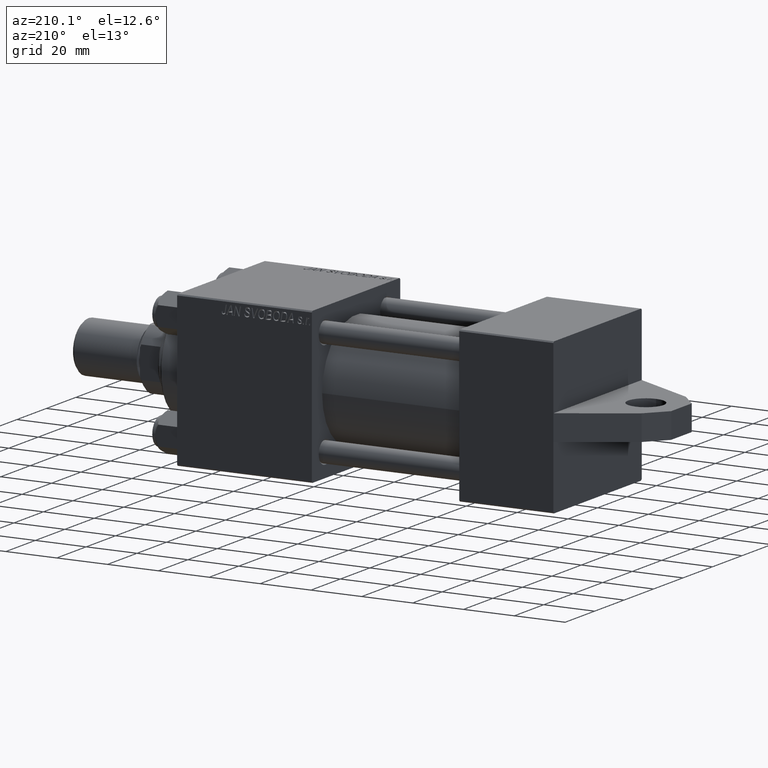
[diagram: clean part render]
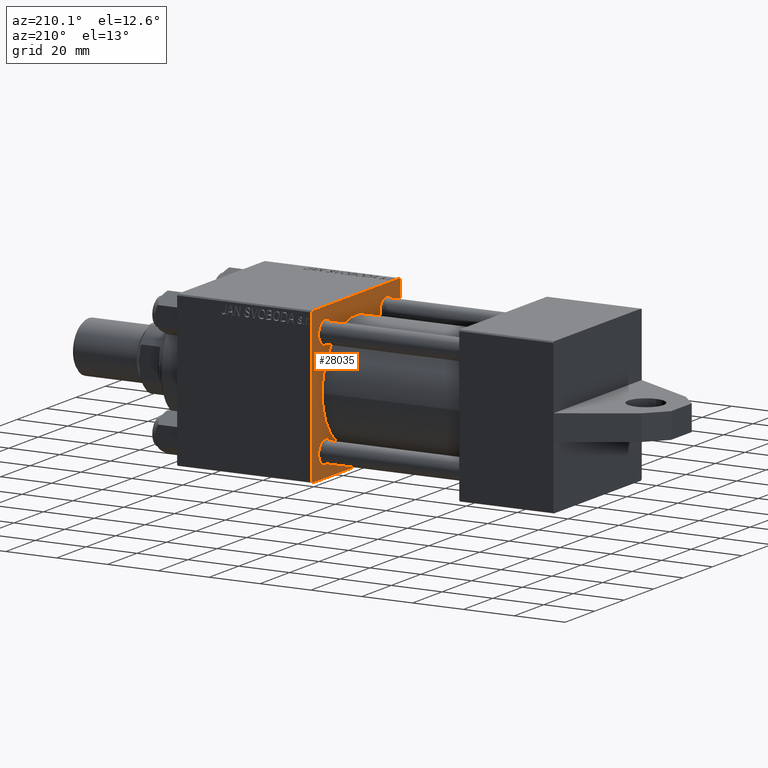
[diagram: same view with one face highlighted and labeled with its STEP entity id]
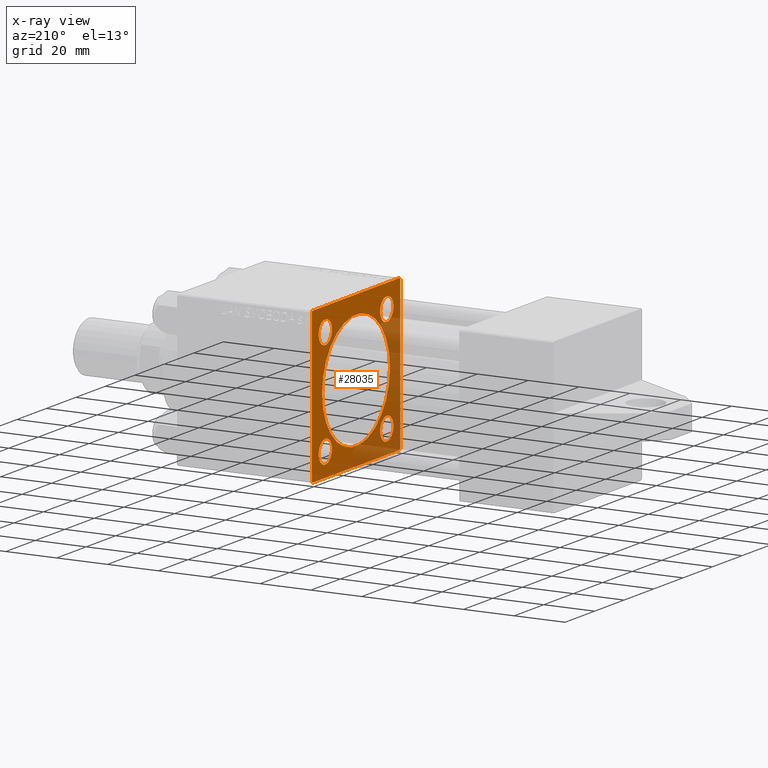
[diagram: x-ray of the same camera — body ghosted, the highlighted face saturated]
A machine part, auxiliary view. The second image highlights one B-rep face of the part: STEP entity #28035.
The next image is the same camera in x-ray: the body ghosted, the highlighted face saturated — about 35% of this face is hidden behind the body in this view.
In plain terms, the highlighted planar face has unit normal (-1, -0, 0).
Its self-contained STEP definition (entity closure, byte-faithful):
#1181 = VECTOR ( 'NONE', #41340, 1000.000000000000114 ) ;
#1668 = EDGE_CURVE ( 'NONE', #6288, #7102, #41125, .T. ) ;
#2061 = CARTESIAN_POINT ( 'NONE',  ( 95.00000000000000000, -2.602085213965210642E-15, 0.000000000000000000 ) ) ;
#2708 = DIRECTION ( 'NONE',  ( 0.000000000000000000, -1.000000000000000000, -1.156482317317871478E-16 ) ) ;
#2984 = AXIS2_PLACEMENT_3D ( 'NONE', #22006, #7453, #37054 ) ;
#3054 = VERTEX_POINT ( 'NONE', #14823 ) ;
#3733 = VECTOR ( 'NONE', #10145, 1000.000000000000114 ) ;
#3761 = VERTEX_POINT ( 'NONE', #38204 ) ;
#3844 = CARTESIAN_POINT ( 'NONE',  ( 95.00000000000000000, 20.84999999999999787, 16.34999999999999787 ) ) ;
#4230 = AXIS2_PLACEMENT_3D ( 'NONE', #12137, #40362, #16108 ) ;
#4669 = CARTESIAN_POINT ( 'NONE',  ( 95.00000000000000000, -20.85000000000000142, -20.85000000000000142 ) ) ;
#4870 = VERTEX_POINT ( 'NONE', #19554 ) ;
#5333 = DIRECTION ( 'NONE',  ( 1.000000000000000000, -0.000000000000000000, 0.000000000000000000 ) ) ;
#6125 = ORIENTED_EDGE ( 'NONE', *, *, #15425, .T. ) ;
#6193 = CARTESIAN_POINT ( 'NONE',  ( 95.00000000000000000, 20.84999999999999787, -20.85000000000000142 ) ) ;
#6213 = CARTESIAN_POINT ( 'NONE',  ( 95.00000000000000000, 29.74999999999999645, 29.74999999999999645 ) ) ;
#6288 = VERTEX_POINT ( 'NONE', #33983 ) ;
#6796 = DIRECTION ( 'NONE',  ( 0.000000000000000000, 0.000000000000000000, 1.000000000000000000 ) ) ;
#7084 = EDGE_CURVE ( 'NONE', #15320, #3761, #18960, .T. ) ;
#7102 = VERTEX_POINT ( 'NONE', #44412 ) ;
#7315 = ORIENTED_EDGE ( 'NONE', *, *, #34019, .F. ) ;
#7453 = DIRECTION ( 'NONE',  ( -1.000000000000000000, 0.000000000000000000, -0.000000000000000000 ) ) ;
#7680 = FACE_BOUND ( 'NONE', #42726, .T. ) ;
#8087 = CIRCLE ( 'NONE', #8822, 23.00000000000000000 ) ;
#8168 = ORIENTED_EDGE ( 'NONE', *, *, #46220, .T. ) ;
#8444 = DIRECTION ( 'NONE',  ( 0.000000000000000000, 0.000000000000000000, 1.000000000000000000 ) ) ;
#8560 = AXIS2_PLACEMENT_3D ( 'NONE', #37560, #5333, #16140 ) ;
#8822 = AXIS2_PLACEMENT_3D ( 'NONE', #2061, #9833, #19935 ) ;
#8897 = ORIENTED_EDGE ( 'NONE', *, *, #38929, .T. ) ;
#9593 = CARTESIAN_POINT ( 'NONE',  ( 95.00000000000000000, -30.00000000000000000, -29.49999999999998579 ) ) ;
#9659 = CIRCLE ( 'NONE', #42711, 4.500000000000003553 ) ;
#9833 = DIRECTION ( 'NONE',  ( 1.000000000000000000, 0.000000000000000000, 0.000000000000000000 ) ) ;
#9843 = DIRECTION ( 'NONE',  ( 1.000000000000000000, -0.000000000000000000, 0.000000000000000000 ) ) ;
#9914 = EDGE_CURVE ( 'NONE', #28671, #4870, #13659, .T. ) ;
#10126 = DIRECTION ( 'NONE',  ( 0.000000000000000000, 0.000000000000000000, -1.000000000000000000 ) ) ;
#10145 = DIRECTION ( 'NONE',  ( 0.000000000000000000, -0.7071067811865474617, 0.7071067811865474617 ) ) ;
#10306 = EDGE_CURVE ( 'NONE', #40777, #41598, #22814, .T. ) ;
#10940 = DIRECTION ( 'NONE',  ( 0.000000000000000000, 0.000000000000000000, 1.000000000000000000 ) ) ;
#10987 = DIRECTION ( 'NONE',  ( 0.000000000000000000, 0.000000000000000000, -1.000000000000000000 ) ) ;
#11040 = VERTEX_POINT ( 'NONE', #14216 ) ;
#11115 = AXIS2_PLACEMENT_3D ( 'NONE', #35119, #42409, #36457 ) ;
#11880 = CIRCLE ( 'NONE', #11115, 4.500000000000003553 ) ;
#12137 = CARTESIAN_POINT ( 'NONE',  ( 95.00000000000000000, -20.84999999999999432, 20.85000000000000142 ) ) ;
#12753 = VERTEX_POINT ( 'NONE', #9593 ) ;
#13342 = CARTESIAN_POINT ( 'NONE',  ( 95.00000000000000000, -30.00000000000000000, 29.99999999999999289 ) ) ;
#13659 = LINE ( 'NONE', #28011, #21320 ) ;
#13898 = DIRECTION ( 'NONE',  ( 1.000000000000000000, 0.000000000000000000, 0.000000000000000000 ) ) ;
#14216 = CARTESIAN_POINT ( 'NONE',  ( 95.00000000000000000, -20.84999999999999432, 25.35000000000000497 ) ) ;
#14690 = CARTESIAN_POINT ( 'NONE',  ( 95.00000000000000000, 20.84999999999999787, 20.85000000000000142 ) ) ;
#14823 = CARTESIAN_POINT ( 'NONE',  ( 95.00000000000000000, -20.84999999999999432, 16.34999999999999787 ) ) ;
#14971 = CIRCLE ( 'NONE', #26987, 23.00000000000000000 ) ;
#15225 = VERTEX_POINT ( 'NONE', #45915 ) ;
#15320 = VERTEX_POINT ( 'NONE', #16982 ) ;
#15425 = EDGE_CURVE ( 'NONE', #15225, #7102, #15713, .T. ) ;
#15705 = CARTESIAN_POINT ( 'NONE',  ( 95.00000000000000000, 30.00000000000000000, 29.50000000000000000 ) ) ;
#15713 = LINE ( 'NONE', #41808, #1181 ) ;
#15927 = EDGE_CURVE ( 'NONE', #3761, #15320, #31999, .T. ) ;
#16108 = DIRECTION ( 'NONE',  ( 0.000000000000000000, 0.000000000000000000, 1.000000000000000000 ) ) ;
#16140 = DIRECTION ( 'NONE',  ( 0.000000000000000000, 0.000000000000000000, 1.000000000000000000 ) ) ;
#16193 = ORIENTED_EDGE ( 'NONE', *, *, #26697, .T. ) ;
#16707 = AXIS2_PLACEMENT_3D ( 'NONE', #4669, #32906, #8444 ) ;
#16982 = CARTESIAN_POINT ( 'NONE',  ( 95.00000000000000000, -20.85000000000000142, -16.34999999999999787 ) ) ;
#17021 = DIRECTION ( 'NONE',  ( 0.000000000000000000, 0.7071067811865474617, -0.7071067811865474617 ) ) ;
#17475 = LINE ( 'NONE', #32747, #40477 ) ;
#17637 = CARTESIAN_POINT ( 'NONE',  ( 95.00000000000000000, -29.50000000000000000, -30.00000000000000000 ) ) ;
#17757 = CARTESIAN_POINT ( 'NONE',  ( 95.00000000000000000, 30.00000000000000000, -29.99999999999999289 ) ) ;
#18525 = CIRCLE ( 'NONE', #44809, 4.500000000000003553 ) ;
#18960 = CIRCLE ( 'NONE', #16707, 4.500000000000003553 ) ;
#19378 = VECTOR ( 'NONE', #2708, 1000.000000000000000 ) ;
#19431 = CARTESIAN_POINT ( 'NONE',  ( 95.00000000000000000, 20.84999999999999787, -25.35000000000000497 ) ) ;
#19554 = CARTESIAN_POINT ( 'NONE',  ( 95.00000000000000000, 30.00000000000000000, -29.49999999999997868 ) ) ;
#19935 = DIRECTION ( 'NONE',  ( 0.000000000000000000, 0.000000000000000000, -1.000000000000000000 ) ) ;
#19940 = DIRECTION ( 'NONE',  ( 0.000000000000000000, -1.000000000000000000, -1.156482317317871478E-16 ) ) ;
#20203 = ORIENTED_EDGE ( 'NONE', *, *, #40073, .T. ) ;
#20519 = DIRECTION ( 'NONE',  ( 1.000000000000000000, -0.000000000000000000, 0.000000000000000000 ) ) ;
#20625 = EDGE_CURVE ( 'NONE', #3054, #11040, #41796, .T. ) ;
#20859 = CARTESIAN_POINT ( 'NONE',  ( 95.00000000000000000, 20.84999999999999787, -16.34999999999999787 ) ) ;
#20885 = ORIENTED_EDGE ( 'NONE', *, *, #10306, .T. ) ;
#21320 = VECTOR ( 'NONE', #10126, 1000.000000000000000 ) ;
#21556 = EDGE_CURVE ( 'NONE', #41598, #40777, #36560, .T. ) ;
#21724 = EDGE_CURVE ( 'NONE', #29578, #32994, #18525, .T. ) ;
#21961 = CARTESIAN_POINT ( 'NONE',  ( 95.00000000000000000, -20.85000000000000142, -20.85000000000000142 ) ) ;
#22006 = CARTESIAN_POINT ( 'NONE',  ( 95.00000000000000000, 0.000000000000000000, 0.000000000000000000 ) ) ;
#22201 = DIRECTION ( 'NONE',  ( 1.000000000000000000, -0.000000000000000000, 0.000000000000000000 ) ) ;
#22696 = PLANE ( 'NONE',  #2984 ) ;
#22814 = CIRCLE ( 'NONE', #8560, 4.500000000000003553 ) ;
#22848 = CARTESIAN_POINT ( 'NONE',  ( 95.00000000000000000, 2.146024240737012665E-16, -23.00000000000000000 ) ) ;
#23377 = EDGE_LOOP ( 'NONE', ( #24789, #24798 ) ) ;
#24351 = LINE ( 'NONE', #17757, #19378 ) ;
#24547 = EDGE_CURVE ( 'NONE', #32826, #38518, #24351, .T. ) ;
#24789 = ORIENTED_EDGE ( 'NONE', *, *, #7084, .T. ) ;
#24798 = ORIENTED_EDGE ( 'NONE', *, *, #15927, .T. ) ;
#25172 = EDGE_CURVE ( 'NONE', #11040, #3054, #9659, .T. ) ;
#25776 = FACE_BOUND ( 'NONE', #28087, .T. ) ;
#26171 = EDGE_CURVE ( 'NONE', #40922, #30385, #14971, .T. ) ;
#26697 = EDGE_CURVE ( 'NONE', #6288, #28671, #38441, .T. ) ;
#26815 = AXIS2_PLACEMENT_3D ( 'NONE', #14690, #22201, #10940 ) ;
#26987 = AXIS2_PLACEMENT_3D ( 'NONE', #35776, #13898, #46358 ) ;
#27171 = EDGE_CURVE ( 'NONE', #38518, #12753, #42367, .T. ) ;
#27613 = EDGE_LOOP ( 'NONE', ( #28727, #20203 ) ) ;
#27729 = VECTOR ( 'NONE', #17021, 1000.000000000000114 ) ;
#27834 = DIRECTION ( 'NONE',  ( 0.000000000000000000, 0.000000000000000000, 1.000000000000000000 ) ) ;
#27926 = ORIENTED_EDGE ( 'NONE', *, *, #1668, .F. ) ;
#28011 = CARTESIAN_POINT ( 'NONE',  ( 95.00000000000000000, 30.00000000000000000, 30.00000000000000000 ) ) ;
#28035 = ADVANCED_FACE ( 'NONE', ( #25776, #7680, #29080, #29535, #39898, #29762 ), #22696, .T. ) ;
#28087 = EDGE_LOOP ( 'NONE', ( #28503, #31288 ) ) ;
#28492 = ORIENTED_EDGE ( 'NONE', *, *, #27171, .T. ) ;
#28503 = ORIENTED_EDGE ( 'NONE', *, *, #25172, .T. ) ;
#28671 = VERTEX_POINT ( 'NONE', #15705 ) ;
#28727 = ORIENTED_EDGE ( 'NONE', *, *, #21724, .T. ) ;
#29038 = DIRECTION ( 'NONE',  ( 0.000000000000000000, 0.000000000000000000, 1.000000000000000000 ) ) ;
#29080 = FACE_BOUND ( 'NONE', #27613, .T. ) ;
#29535 = FACE_BOUND ( 'NONE', #23377, .T. ) ;
#29578 = VERTEX_POINT ( 'NONE', #20859 ) ;
#29748 = AXIS2_PLACEMENT_3D ( 'NONE', #21961, #35866, #29038 ) ;
#29762 = FACE_OUTER_BOUND ( 'NONE', #39633, .T. ) ;
#30385 = VERTEX_POINT ( 'NONE', #35228 ) ;
#30540 = CARTESIAN_POINT ( 'NONE',  ( 95.00000000000000000, 30.00000000000000000, 30.00000000000000000 ) ) ;
#31288 = ORIENTED_EDGE ( 'NONE', *, *, #20625, .T. ) ;
#31999 = CIRCLE ( 'NONE', #29748, 4.500000000000003553 ) ;
#32747 = CARTESIAN_POINT ( 'NONE',  ( 95.00000000000000000, 29.74999999999999645, -29.74999999999999645 ) ) ;
#32826 = VERTEX_POINT ( 'NONE', #43693 ) ;
#32906 = DIRECTION ( 'NONE',  ( 1.000000000000000000, -0.000000000000000000, 0.000000000000000000 ) ) ;
#32994 = VERTEX_POINT ( 'NONE', #19431 ) ;
#33700 = EDGE_LOOP ( 'NONE', ( #8897, #44918 ) ) ;
#33983 = CARTESIAN_POINT ( 'NONE',  ( 95.00000000000000000, 29.50000000000000000, 30.00000000000000000 ) ) ;
#34019 = EDGE_CURVE ( 'NONE', #15225, #12753, #45559, .T. ) ;
#34136 = CARTESIAN_POINT ( 'NONE',  ( 95.00000000000000000, -29.74999999999999645, -29.74999999999999645 ) ) ;
#35119 = CARTESIAN_POINT ( 'NONE',  ( 95.00000000000000000, 20.84999999999999787, -20.85000000000000142 ) ) ;
#35228 = CARTESIAN_POINT ( 'NONE',  ( 95.00000000000000000, -2.602085213965210642E-15, 23.00000000000000000 ) ) ;
#35776 = CARTESIAN_POINT ( 'NONE',  ( 95.00000000000000000, -2.602085213965210642E-15, 0.000000000000000000 ) ) ;
#35866 = DIRECTION ( 'NONE',  ( 1.000000000000000000, -0.000000000000000000, 0.000000000000000000 ) ) ;
#36457 = DIRECTION ( 'NONE',  ( 0.000000000000000000, 0.000000000000000000, 1.000000000000000000 ) ) ;
#36560 = CIRCLE ( 'NONE', #26815, 4.500000000000003553 ) ;
#37054 = DIRECTION ( 'NONE',  ( -0.000000000000000000, 0.000000000000000000, 1.000000000000000000 ) ) ;
#37551 = ORIENTED_EDGE ( 'NONE', *, *, #9914, .T. ) ;
#37560 = CARTESIAN_POINT ( 'NONE',  ( 95.00000000000000000, 20.84999999999999787, 20.85000000000000142 ) ) ;
#37931 = VECTOR ( 'NONE', #10987, 1000.000000000000000 ) ;
#38204 = CARTESIAN_POINT ( 'NONE',  ( 95.00000000000000000, -20.85000000000000142, -25.35000000000000497 ) ) ;
#38441 = LINE ( 'NONE', #6213, #27729 ) ;
#38518 = VERTEX_POINT ( 'NONE', #17637 ) ;
#38772 = ORIENTED_EDGE ( 'NONE', *, *, #21556, .T. ) ;
#38929 = EDGE_CURVE ( 'NONE', #30385, #40922, #8087, .T. ) ;
#39591 = DIRECTION ( 'NONE',  ( -0.000000000000000000, -0.7071067811865474617, -0.7071067811865474617 ) ) ;
#39633 = EDGE_LOOP ( 'NONE', ( #41600, #28492, #7315, #6125, #27926, #16193, #37551, #8168 ) ) ;
#39898 = FACE_BOUND ( 'NONE', #33700, .T. ) ;
#40073 = EDGE_CURVE ( 'NONE', #32994, #29578, #11880, .T. ) ;
#40362 = DIRECTION ( 'NONE',  ( 1.000000000000000000, -0.000000000000000000, 0.000000000000000000 ) ) ;
#40477 = VECTOR ( 'NONE', #39591, 1000.000000000000114 ) ;
#40777 = VERTEX_POINT ( 'NONE', #41710 ) ;
#40922 = VERTEX_POINT ( 'NONE', #22848 ) ;
#41125 = LINE ( 'NONE', #30540, #44793 ) ;
#41340 = DIRECTION ( 'NONE',  ( -0.000000000000000000, 0.7071067811865474617, 0.7071067811865474617 ) ) ;
#41598 = VERTEX_POINT ( 'NONE', #3844 ) ;
#41600 = ORIENTED_EDGE ( 'NONE', *, *, #24547, .T. ) ;
#41710 = CARTESIAN_POINT ( 'NONE',  ( 95.00000000000000000, 20.84999999999999787, 25.35000000000000497 ) ) ;
#41796 = CIRCLE ( 'NONE', #4230, 4.500000000000003553 ) ;
#41808 = CARTESIAN_POINT ( 'NONE',  ( 95.00000000000000000, -29.74999999999999645, 29.74999999999999645 ) ) ;
#42071 = CARTESIAN_POINT ( 'NONE',  ( 95.00000000000000000, -20.84999999999999432, 20.85000000000000142 ) ) ;
#42367 = LINE ( 'NONE', #34136, #3733 ) ;
#42409 = DIRECTION ( 'NONE',  ( 1.000000000000000000, -0.000000000000000000, 0.000000000000000000 ) ) ;
#42711 = AXIS2_PLACEMENT_3D ( 'NONE', #42071, #9843, #6796 ) ;
#42726 = EDGE_LOOP ( 'NONE', ( #20885, #38772 ) ) ;
#43693 = CARTESIAN_POINT ( 'NONE',  ( 95.00000000000000000, 29.50000000000000000, -29.99999999999999289 ) ) ;
#44412 = CARTESIAN_POINT ( 'NONE',  ( 95.00000000000000000, -29.50000000000000000, 29.99999999999999289 ) ) ;
#44793 = VECTOR ( 'NONE', #19940, 1000.000000000000000 ) ;
#44809 = AXIS2_PLACEMENT_3D ( 'NONE', #6193, #20519, #27834 ) ;
#44918 = ORIENTED_EDGE ( 'NONE', *, *, #26171, .T. ) ;
#45559 = LINE ( 'NONE', #13342, #37931 ) ;
#45915 = CARTESIAN_POINT ( 'NONE',  ( 95.00000000000000000, -30.00000000000000000, 29.49999999999999289 ) ) ;
#46220 = EDGE_CURVE ( 'NONE', #4870, #32826, #17475, .T. ) ;
#46358 = DIRECTION ( 'NONE',  ( 0.000000000000000000, 0.000000000000000000, -1.000000000000000000 ) ) ;